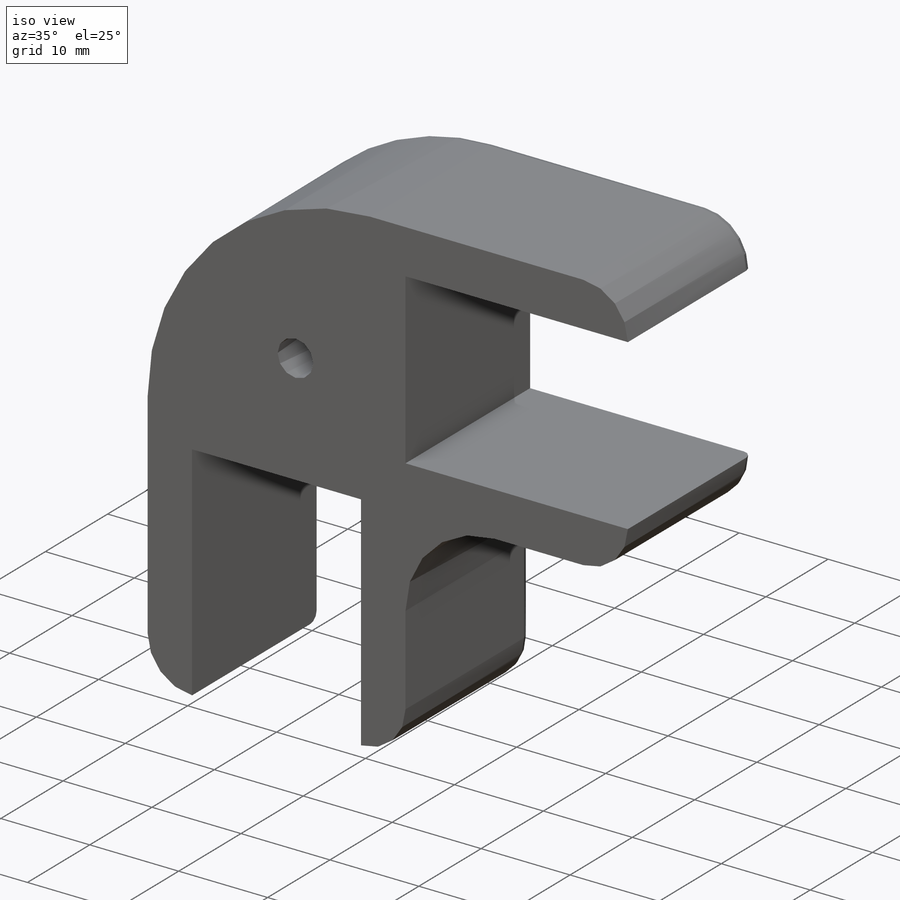
[diagram: iso view]
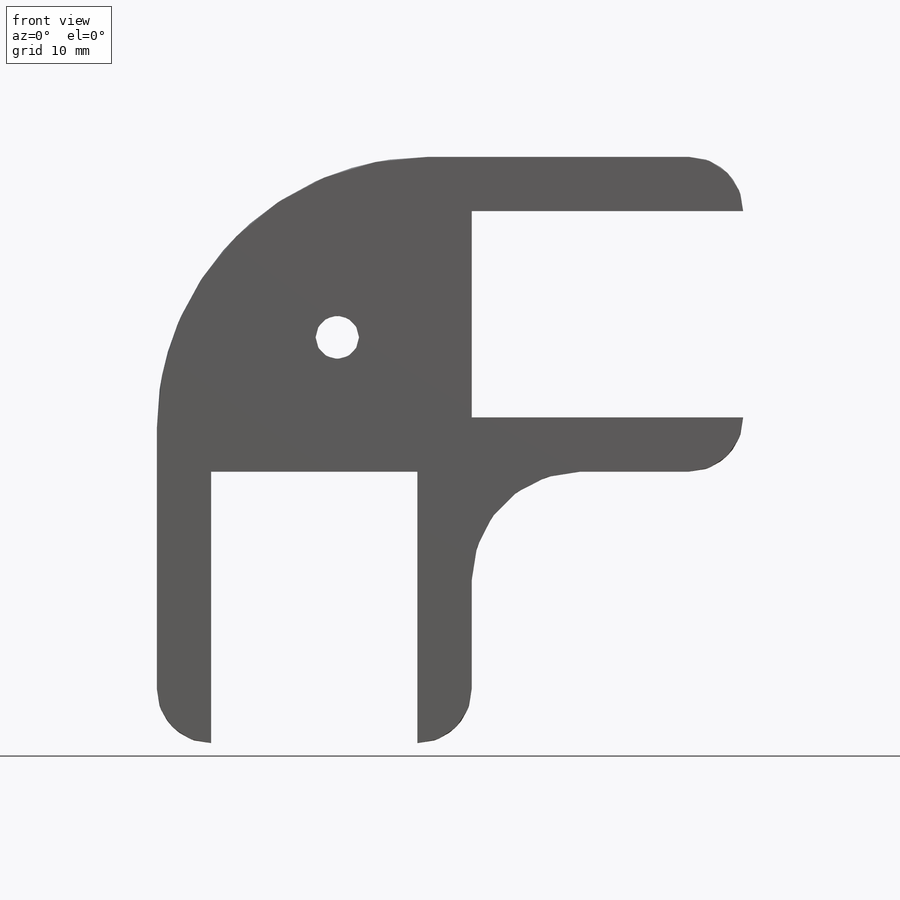
[diagram: front view]
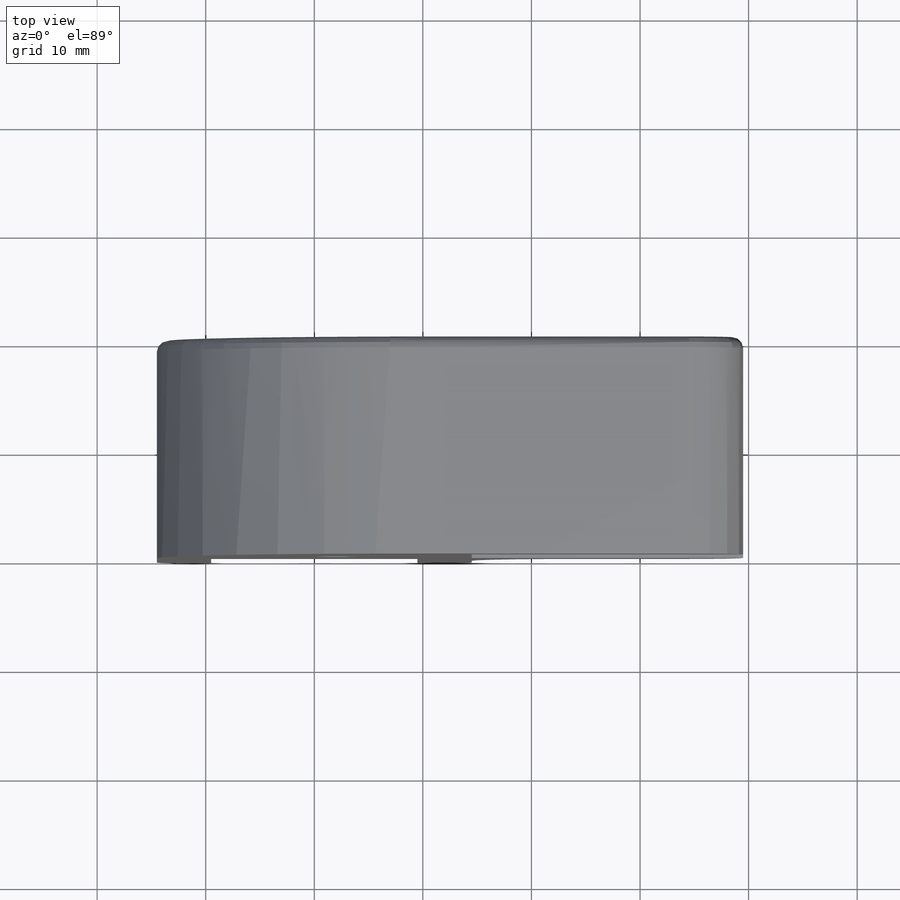
[diagram: top view]
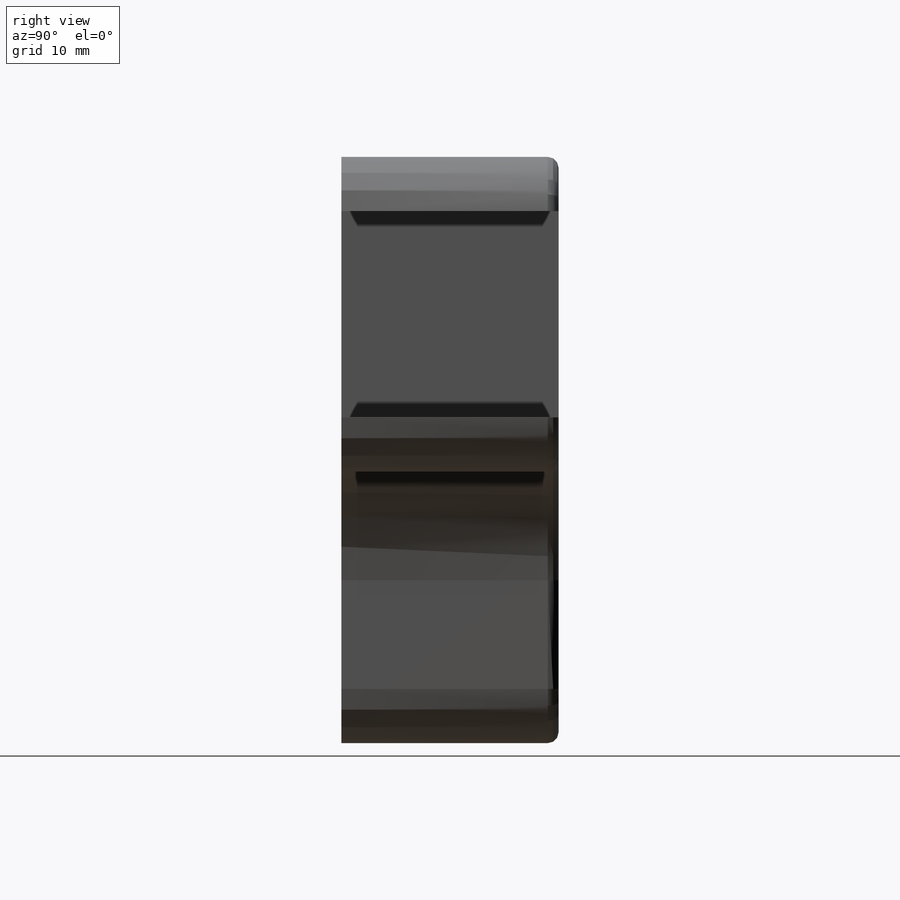
[diagram: right view]
SOLIDWORKS PART (.sldprt)
format: sldprt  version: not decoded by parser v0  size: 351,744 bytes
history: native  units: mm
features: sketch x6, plane x5, fillet x4, cut_extrude x2, material x1, extrude x1, cut_revolve x1 + 1 further entry (+7 scaffold rows collapsed)
feature tree (28):
  scaffold x7  (default folders/planes/origin — collapsed)
  material  "Material <sin especificar>"
  "Anotaciones"  RD1=54mm
  plane  "Alzado"
  plane  "Planta"
  plane  "Vista lateral"
  sketch  "Croquis1"  dims[c1.D7=15.0mm c1.D12=10.0mm c2.D7=25.0mm c2.D1=60.0mm c2.D2=60.0mm c2.D3=60.0mm c3.D3=90.0deg c3.D4=~20.413153mm c3.D5=60.0mm c4.D4=60.0mm c4.D5=~23.494658mm c5.D4=18.5mm c5.D5=18.5mm c5.D6=~24.262455mm c5.D7=60.0mm c6.D6=0.5mm c6.D7=60.0mm c6.D8=~22.814784mm c7.D7=0.5mm c7.D8=~24.663893mm c7.D9=79.0mm c8.D8=2.5mm c8.D9=79.0mm c8.D10=~27.082071mm c9.D9=5.0mm c9.D7=~0.143772mm c9.D8=5.0mm c9.D10=5.0mm c9.D11=5.0mm c9.D12=~6.687901mm c9.D13=25.0mm c9.D14=0.5mm c9.D15=0.5mm c9.D16=25.0mm c9.D17=45.5mm]
  extrude  "Saliente-Extruir1"  Depth=20mm
  plane  "Plano1"
  sketch  "Croquis4"  dims[D1=5.0mm D2=5.0mm D3=5.0mm]
  cut_extrude  "Cortar-Extruir1"  Depth=15mm
  fillet  "Redondeo3"  Radius=10mm
  fillet  "Redondeo4"  Radius=5mm
  fillet  "Redondeo5"  Radius=3mm
  fillet  "Redondeo6"  Radius=1mm
  sketch  "Croquis6"  dims[c1.D1=4.0mm c1.D2=~10.843438mm c2.D2=~129.992432deg c3.D2=~11.415205mm c4.D2=45.0deg c5.D2=~2.619181mm c6.D2=135.0deg c6.D3=3.0mm]
  cut_extrude  "Cortar-Extruir2"  [1 undecoded]
  sketch  "Croquis7"  dims[D1=~24.836417mm]
  plane  "Plano2"
  sketch  "Croquis8"  dims[c1.D1=~4.00514mm c2.D1=~0.825411deg c3.D1=4.0mm c3.D2=2.0mm c4.D1=~2.00514mm c5.D1=~63.376076deg c6.D1=4.0mm c6.D2=~4.00514mm c7.D2=45.0deg]
  cut_revolve  "Cortar-Revolución1"  Angle=360deg
  sketch  "Croquis9"  dims[D1=11.0mm]
decode coverage: 13 of 14 modeling features carry decoded parameters; 1 rows unclassified (native names shown)
note: ~ marks probable driven/reference dimensions
note: 1 parameter value undecoded
note: suppression state not decoded; provenance and decode notes live in map.json
